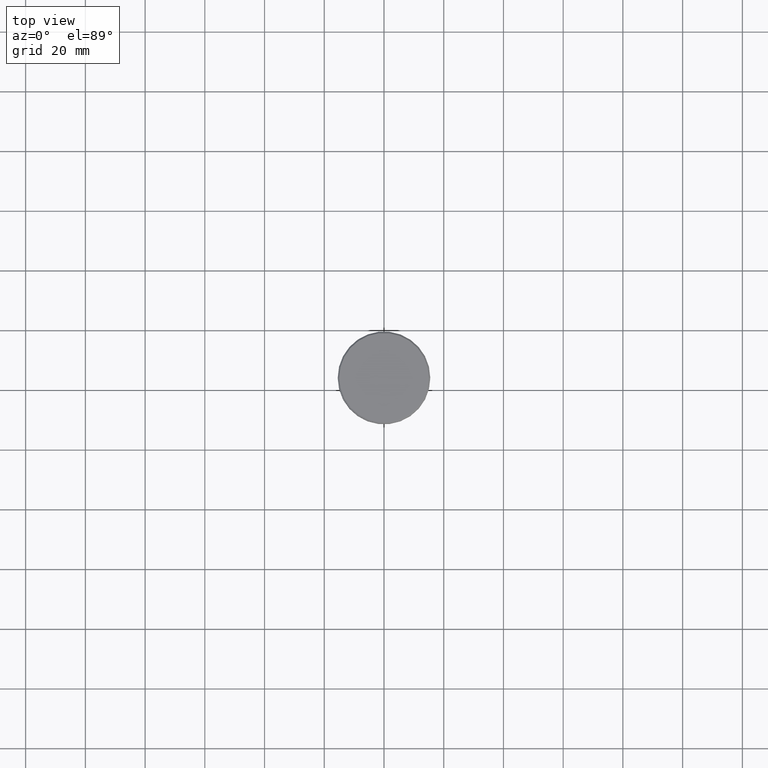
[diagram: clean part render]
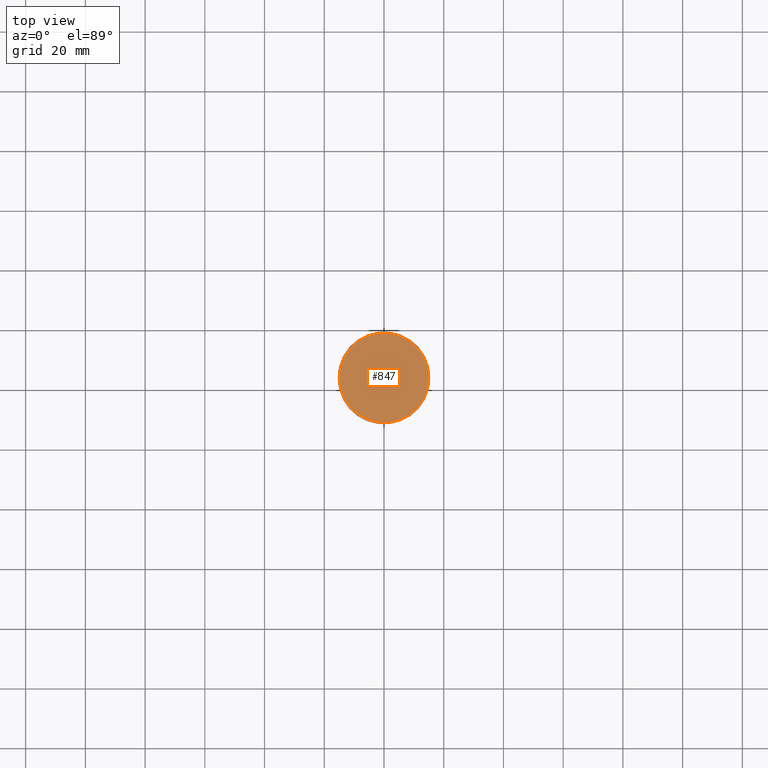
[diagram: same view with one face highlighted and labeled with its STEP entity id]
A machine part, top view. The second image highlights one B-rep face of the part: STEP entity #847.
In plain terms, the highlighted planar face has unit normal (0, -0, 1).
Its self-contained STEP definition (entity closure, byte-faithful):
#66 = CARTESIAN_POINT ( 'NONE',  ( 0.000000000000000000, 0.000000000000000000, 0.000000000000000000 ) ) ;
#79 = CARTESIAN_POINT ( 'NONE',  ( -14.99999999999995737, 0.000000000000000000, 0.000000000000000000 ) ) ;
#99 = DIRECTION ( 'NONE',  ( 0.000000000000000000, -0.000000000000000000, 1.000000000000000000 ) ) ;
#132 = CARTESIAN_POINT ( 'NONE',  ( 14.99999999999995737, 1.867586368699711009E-15, 0.000000000000000000 ) ) ;
#169 = FACE_OUTER_BOUND ( 'NONE', #527, .T. ) ;
#221 = ORIENTED_EDGE ( 'NONE', *, *, #742, .T. ) ;
#269 = CIRCLE ( 'NONE', #865, 14.99999999999995737 ) ;
#342 = CARTESIAN_POINT ( 'NONE',  ( 0.000000000000000000, 0.000000000000000000, 0.000000000000000000 ) ) ;
#346 = AXIS2_PLACEMENT_3D ( 'NONE', #342, #584, #401 ) ;
#353 = VERTEX_POINT ( 'NONE', #132 ) ;
#401 = DIRECTION ( 'NONE',  ( 1.000000000000000000, 0.000000000000000000, 0.000000000000000000 ) ) ;
#445 = DIRECTION ( 'NONE',  ( 1.000000000000000000, 0.000000000000000000, 0.000000000000000000 ) ) ;
#527 = EDGE_LOOP ( 'NONE', ( #1027, #221 ) ) ;
#529 = PLANE ( 'NONE',  #654 ) ;
#535 = CARTESIAN_POINT ( 'NONE',  ( 0.000000000000000000, 0.000000000000000000, 0.000000000000000000 ) ) ;
#584 = DIRECTION ( 'NONE',  ( -0.000000000000000000, -0.000000000000000000, 1.000000000000000000 ) ) ;
#586 = DIRECTION ( 'NONE',  ( 1.000000000000000000, 0.000000000000000000, 0.000000000000000000 ) ) ;
#654 = AXIS2_PLACEMENT_3D ( 'NONE', #535, #99, #445 ) ;
#695 = DIRECTION ( 'NONE',  ( -0.000000000000000000, -0.000000000000000000, 1.000000000000000000 ) ) ;
#742 = EDGE_CURVE ( 'NONE', #353, #792, #1037, .T. ) ;
#792 = VERTEX_POINT ( 'NONE', #79 ) ;
#847 = ADVANCED_FACE ( 'NONE', ( #169 ), #529, .T. ) ;
#865 = AXIS2_PLACEMENT_3D ( 'NONE', #66, #695, #586 ) ;
#1027 = ORIENTED_EDGE ( 'NONE', *, *, #1076, .T. ) ;
#1037 = CIRCLE ( 'NONE', #346, 14.99999999999995737 ) ;
#1076 = EDGE_CURVE ( 'NONE', #792, #353, #269, .T. ) ;